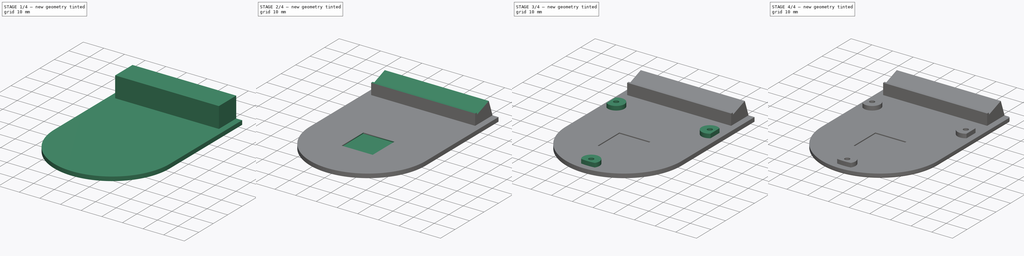
[diagram: build sequence overview — one tinted view per stage of 4, left to right]
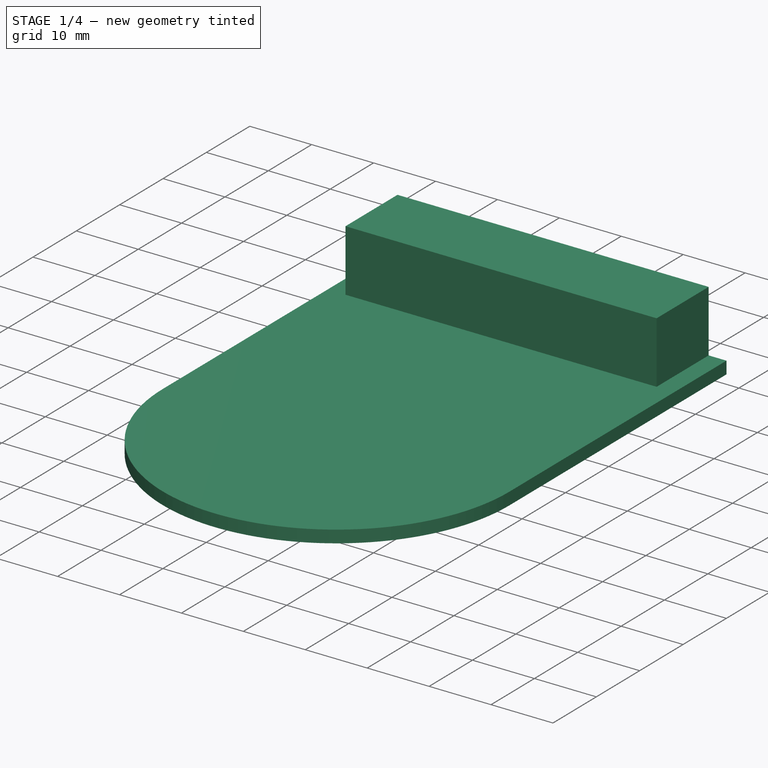
[diagram: stage 1 of 4 — iso view after this stage's code; geometry added in this stage tinted green]
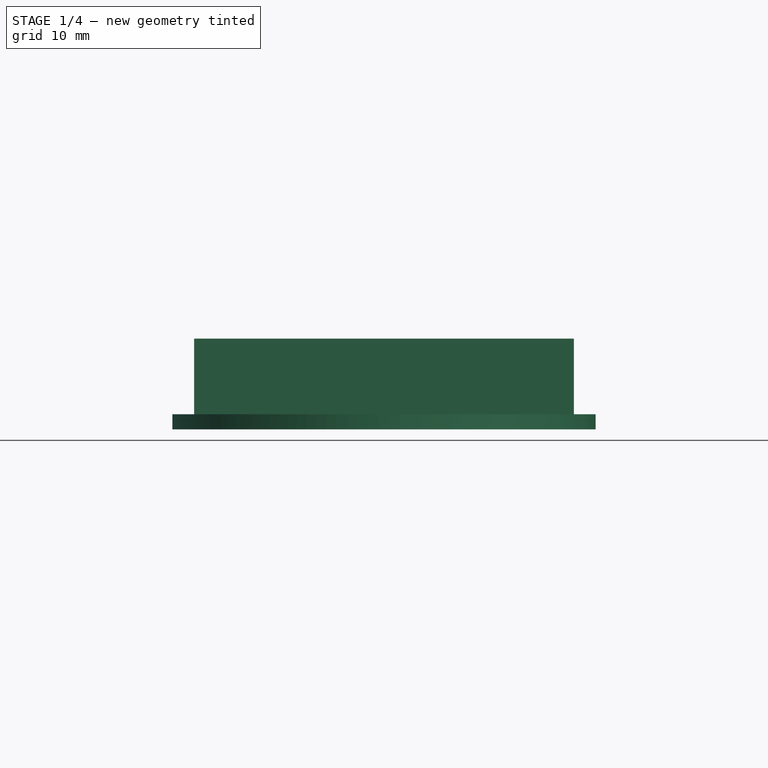
[diagram: stage 1 of 4 — front view after this stage's code; geometry added in this stage tinted green]
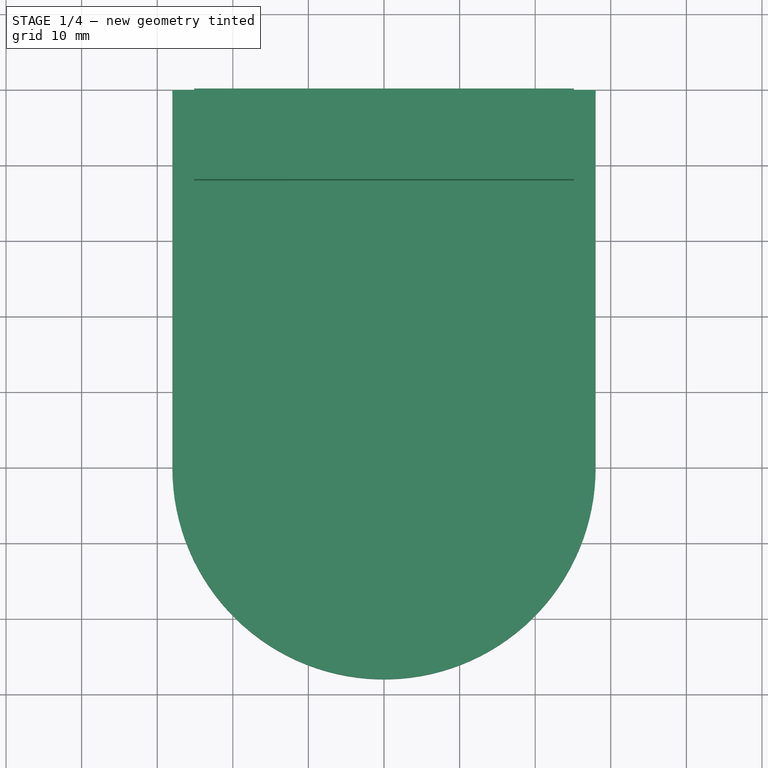
[diagram: stage 1 of 4 — top view after this stage's code; geometry added in this stage tinted green]
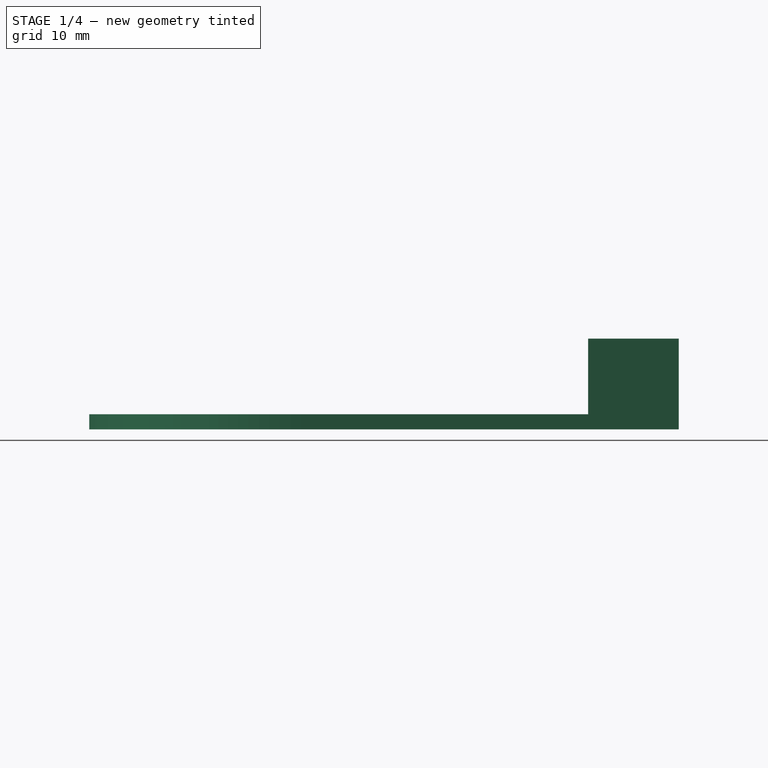
[diagram: stage 1 of 4 — right view after this stage's code; geometry added in this stage tinted green]
FCSTD DOCUMENT  (FreeCAD 0.16R6704 (Git))
Label: case-lower
License: All rights reserved
LicenseURL: http://en.wikipedia.org/wiki/All_rights_reserved
objects: Sketcher::SketchObject×7, PartDesign::Pocket×4, PartDesign::Pad×3, PartDesign::Fillet×2
note: 23 computed .brp shape members not serialized (recipe doc carries the construction recipe); baked Part::Feature solids carry a one-line shape summary decoded from their .brp

FEATURE [Sketcher::SketchObject] Sketch
  sketch-geometry (4):
    g0: ArcOfCircle CenterX=0 CenterY=0 CenterZ=0 NormalX=0 NormalY=0 NormalZ=1 Radius=28 StartAngle=3.14159 EndAngle=6.28319
    g1: LineSegment StartX=-28 StartY=0 StartZ=0 EndX=-28 EndY=50 EndZ=0
    g2: LineSegment StartX=-28 StartY=50 StartZ=0 EndX=28 EndY=50 EndZ=0
    g3: LineSegment StartX=28 StartY=50 StartZ=0 EndX=28 EndY=0 EndZ=0
  constraints (11):
    c: Coincident(g0,g-1)
    c: PointOnObject(g0,g-1)
    c: PointOnObject(g0,g-1)
    c: Tangent(g0,g1) = 1.5708
    c: Coincident(g1,g2)
    c: Horizontal(g2)
    c: Coincident(g2,g3)
    c: Coincident(g3,g0)
    c: Vertical(g3)
    c: DistanceX(g2,g2) = 56
    c: DistanceY(g1) = 50
FEATURE [PartDesign::Pad] Pad
  Length = 2
  Length2 = 100
  Sketch = -> Sketch
  Type = 0
FEATURE [Sketcher::SketchObject] Sketch001
  ExternalGeometry = -> [Pad]
  Placement = pos=(0,0,2) rot=(0,0,1;0rad)
  Support = -> Pad [Face6]
  sketch-geometry (4):
    g0: LineSegment StartX=-25.125 StartY=50 StartZ=0 EndX=25.125 EndY=50 EndZ=0
    g1: LineSegment StartX=25.125 StartY=50 StartZ=0 EndX=25.125 EndY=38 EndZ=0
    g2: LineSegment StartX=25.125 StartY=38 StartZ=0 EndX=-25.125 EndY=38 EndZ=0
    g3: LineSegment StartX=-25.125 StartY=38 StartZ=0 EndX=-25.125 EndY=50 EndZ=0
  constraints (12):
    c: Coincident(g0,g1)
    c: Coincident(g1,g2)
    c: Coincident(g2,g3)
    c: Coincident(g3,g0)
    c: Horizontal(g0)
    c: Horizontal(g2)
    c: Vertical(g1)
    c: Vertical(g3)
    c: PointOnObject(g0,g-3)
    c: DistanceY(g3,g3) = 12
    c: Symmetric(g1,g2,g-2)
    c: DistanceX(g2,g2) = 50.25
FEATURE [PartDesign::Pad] Pad001
  Length = 10
  Length2 = 100
  Sketch = -> Sketch001
  Type = 0
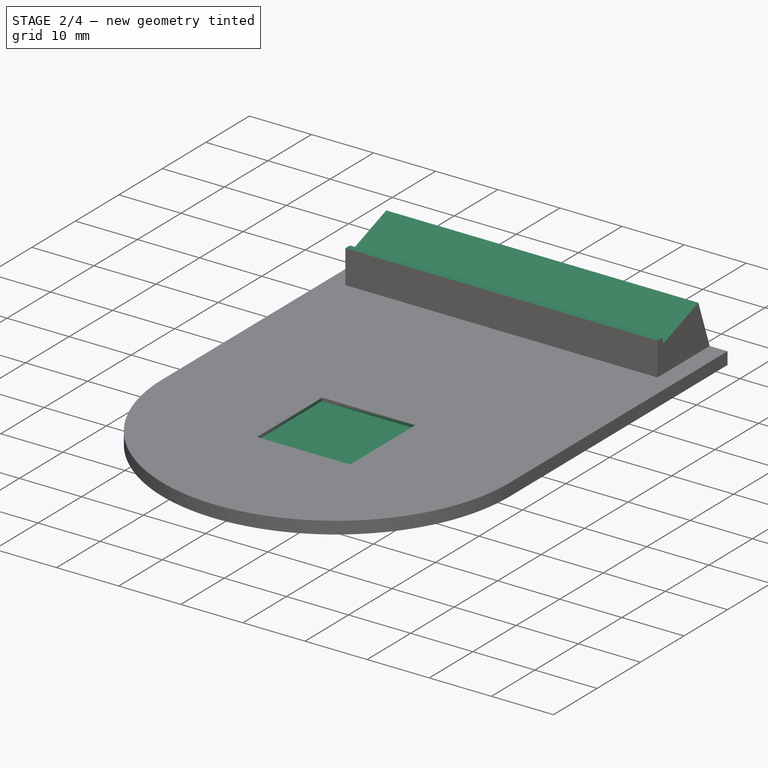
[diagram: stage 2 of 4 — iso view after this stage's code; geometry added in this stage tinted green]
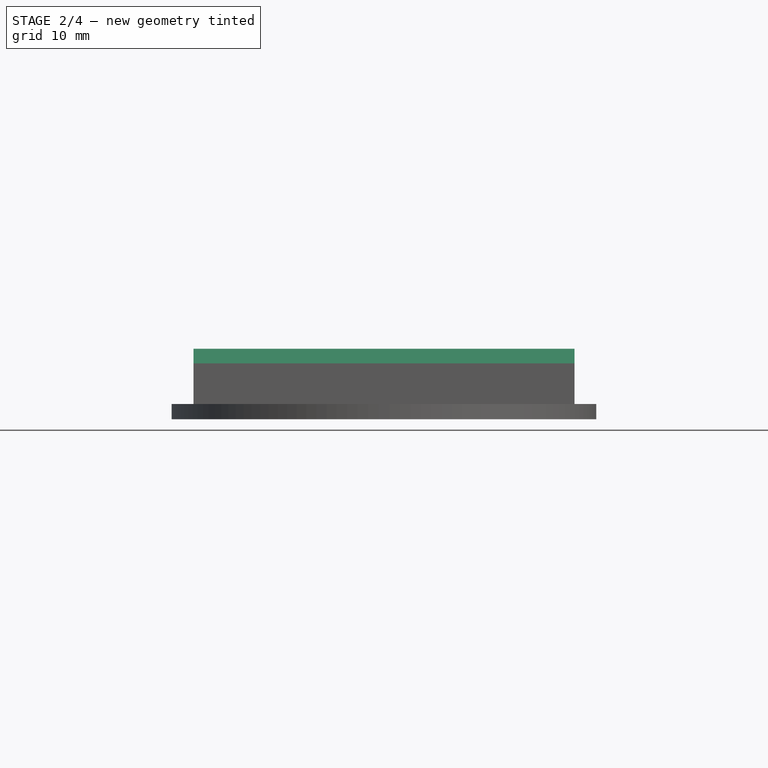
[diagram: stage 2 of 4 — front view after this stage's code; geometry added in this stage tinted green]
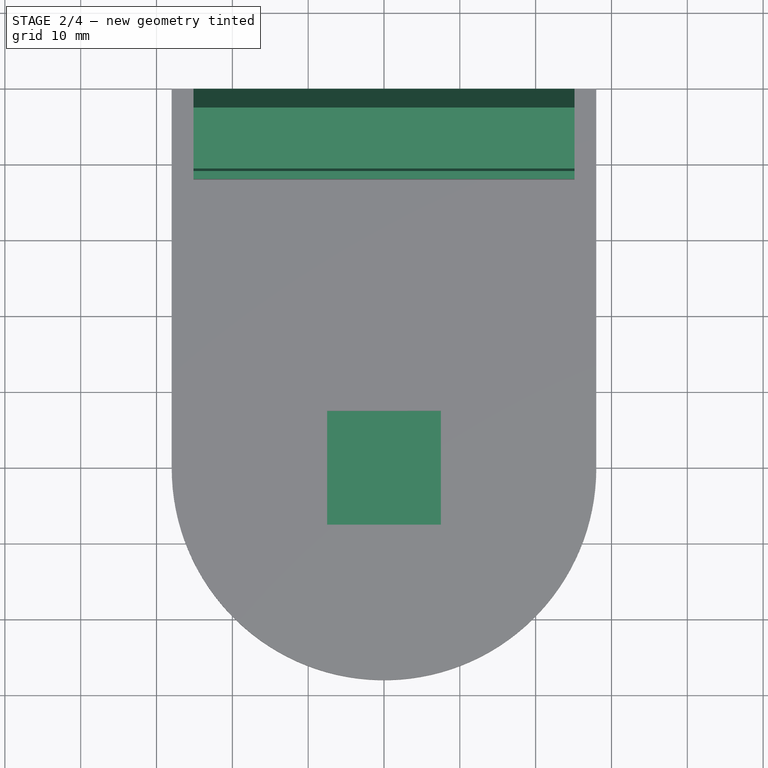
[diagram: stage 2 of 4 — top view after this stage's code; geometry added in this stage tinted green]
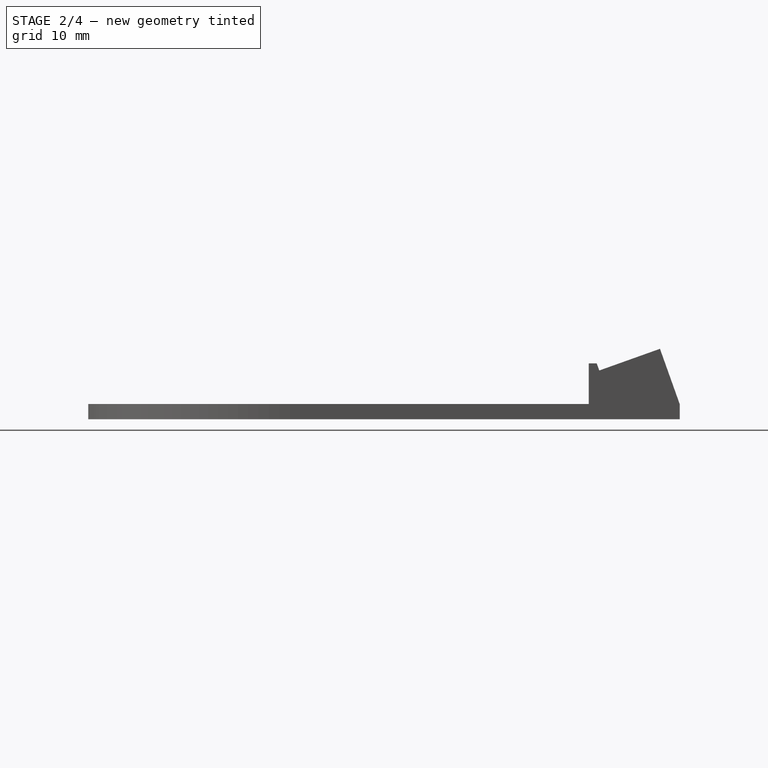
[diagram: stage 2 of 4 — right view after this stage's code; geometry added in this stage tinted green]
FEATURE [Sketcher::SketchObject] Sketch002
  ExternalGeometry = -> [Pad001]
  Placement = pos=(25.125,0,0) rot=(0.57735,0.57735,0.57735;2.0944rad)
  Support = -> Pad001 [Face7]
  sketch-geometry (10):
    g0: LineSegment StartX=50 StartY=2 StartZ=0 EndX=47.3994 EndY=9.28168 EndZ=0
    g1: LineSegment StartX=47.3994 StartY=9.28168 StartZ=0 EndX=39.3946 EndY=6.42282 EndZ=0
    g2: LineSegment StartX=39.3946 StartY=6.42282 StartZ=0 EndX=39.0583 EndY=7.36456 EndZ=0
    g3: LineSegment StartX=39.0583 StartY=7.36456 StartZ=0 EndX=34 EndY=7.36456 EndZ=0
    g4: LineSegment StartX=34 StartY=7.36456 StartZ=0 EndX=34 EndY=14 EndZ=0
    g5: LineSegment StartX=34 StartY=14 StartZ=0 EndX=52 EndY=14 EndZ=0
    g6: LineSegment StartX=52 StartY=14 StartZ=0 EndX=52 EndY=2 EndZ=0
    g7: LineSegment StartX=52 StartY=2 StartZ=0 EndX=50 EndY=2 EndZ=0
    g8: LineSegment [constr] StartX=47.3994 StartY=9.28168 StartZ=0 EndX=40.9249 EndY=27.4102 EndZ=0
    g9: LineSegment [constr] StartX=40.9249 StartY=27.4102 StartZ=0 EndX=40 EndY=30 EndZ=0
  constraints (29):
    c: Coincident(g0,g-3)
    c: Coincident(g0,g1)
    c: Coincident(g1,g2)
    c: Coincident(g2,g3)
    c: Coincident(g3,g4)
    c: Vertical(g4)
    c: Coincident(g4,g5)
    c: Horizontal(g5)
    c: Coincident(g5,g6)
    c: Vertical(g6)
    c: Coincident(g6,g7)
    c: Coincident(g7,g0)
    c: Horizontal(g7)
    c: Perpendicular(g0,g1)
    c: Perpendicular(g2,g1)
    c: DistanceX(g7,g7) = 2
    c: DistanceY(g6,g6) = 12
    c: Distance(g1) = 8.5
    c: Distance(g2) = 1
    c: Coincident(g8,g0)
    c: Coincident(g9,g8)
    c: Parallel(g9,g8)
    c: Parallel(g8,g0)
    c: DistanceX(g9) = 40
    c: Distance(g9) = 2.75
    c: Distance(g8) = 19.25
    c: DistanceY(g0,g9) = 28
    c: Horizontal(g3)
    c: DistanceX(g5,g5) = 18
FEATURE [PartDesign::Pocket] Pocket
  Length = 5
  Sketch = -> Sketch002
  Type = 1
FEATURE [Sketcher::SketchObject] Sketch003
  Placement = pos=(0,0,2) rot=(0,0,1;0rad)
  Support = -> Pocket [Face5]
  sketch-geometry (4):
    g0: LineSegment StartX=-7.5 StartY=7.5 StartZ=0 EndX=7.5 EndY=7.5 EndZ=0
    g1: LineSegment StartX=7.5 StartY=7.5 StartZ=0 EndX=7.5 EndY=-7.5 EndZ=0
    g2: LineSegment StartX=7.5 StartY=-7.5 StartZ=0 EndX=-7.5 EndY=-7.5 EndZ=0
    g3: LineSegment StartX=-7.5 StartY=-7.5 StartZ=0 EndX=-7.5 EndY=7.5 EndZ=0
  constraints (12):
    c: Coincident(g0,g1)
    c: Coincident(g1,g2)
    c: Coincident(g2,g3)
    c: Coincident(g3,g0)
    c: Horizontal(g0)
    c: Horizontal(g2)
    c: Vertical(g1)
    c: Vertical(g3)
    c: Symmetric(g0,g0,g-2)
    c: Symmetric(g0,g1,g-1)
    c: Equal(g0,g1)
    c: Distance(g0) = 15
FEATURE [PartDesign::Pocket] Pocket001
  Length = 0.5
  Sketch = -> Sketch003
  Type = 0
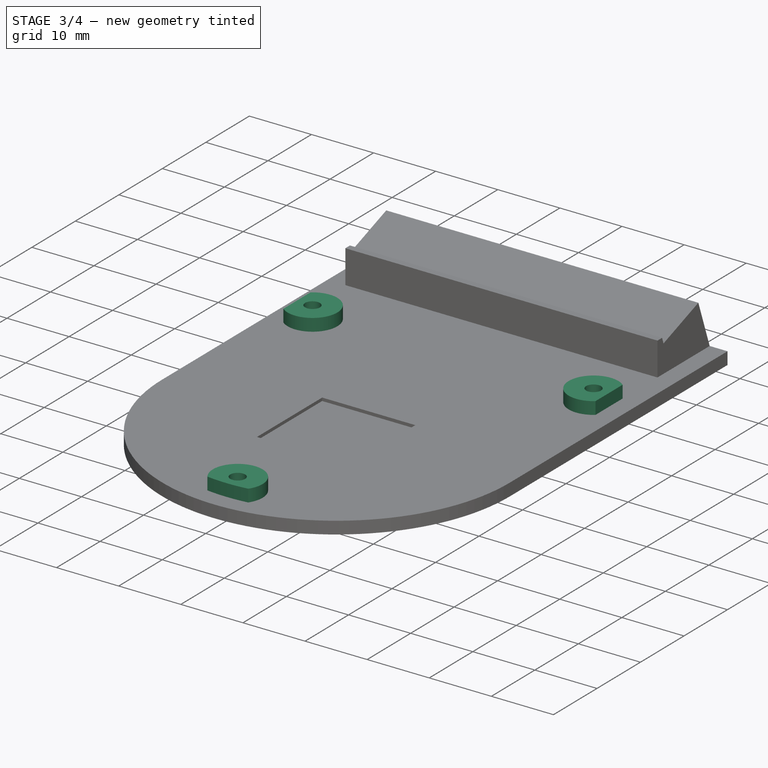
[diagram: stage 3 of 4 — iso view after this stage's code; geometry added in this stage tinted green]
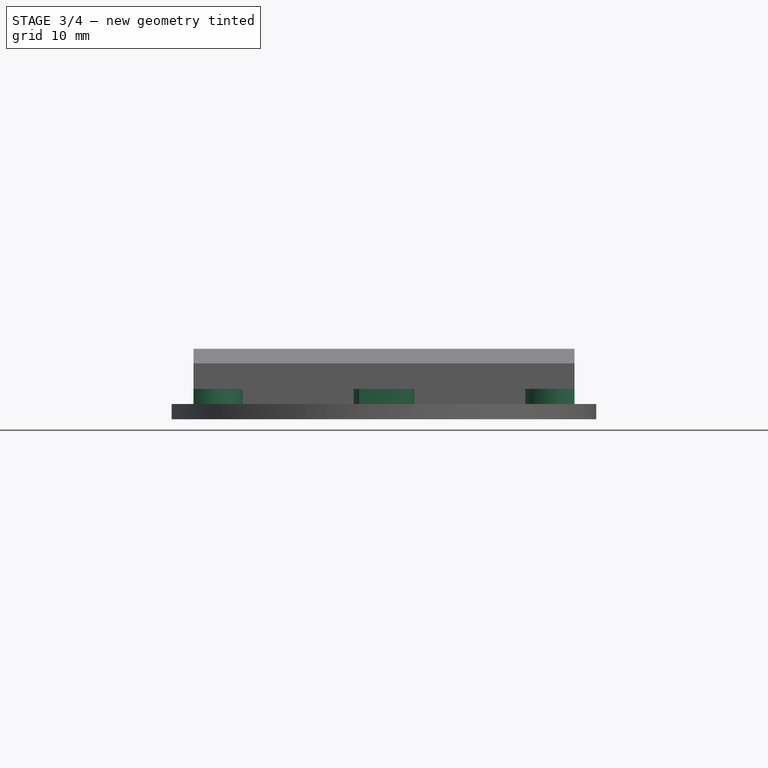
[diagram: stage 3 of 4 — front view after this stage's code; geometry added in this stage tinted green]
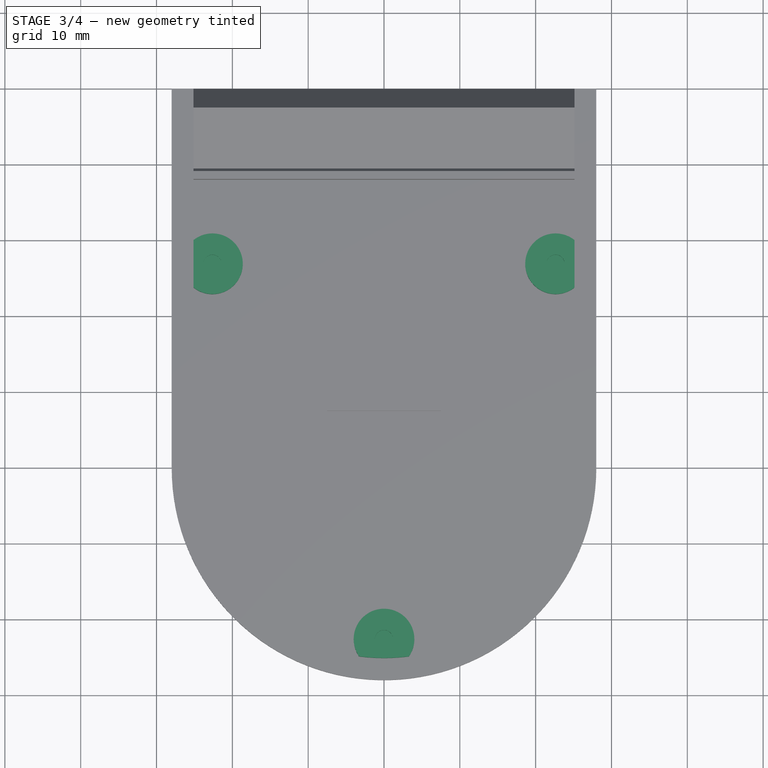
[diagram: stage 3 of 4 — top view after this stage's code; geometry added in this stage tinted green]
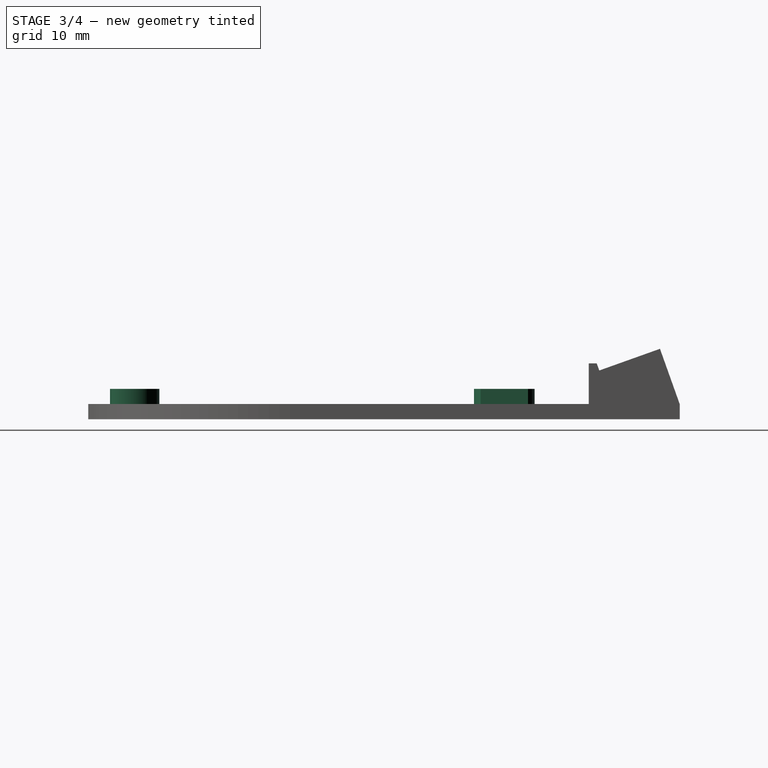
[diagram: stage 3 of 4 — right view after this stage's code; geometry added in this stage tinted green]
FEATURE [Sketcher::SketchObject] Sketch004
  Placement = pos=(0,0,2) rot=(0,0,1;0rad)
  Support = -> Pocket001 [Face5]
  sketch-geometry (6):
    g0: ArcOfCircle CenterX=-22.625 CenterY=26.8775 CenterZ=0 NormalX=0 NormalY=0 NormalZ=1 Radius=4 StartAngle=4.03726 EndAngle=8.52911
    g1: ArcOfCircle CenterX=22.625 CenterY=26.8775 CenterZ=0 NormalX=0 NormalY=0 NormalZ=1 Radius=4 StartAngle=0.895665 EndAngle=5.38752
    g2: ArcOfCircle CenterX=0 CenterY=-22.625 CenterZ=0 NormalX=0 NormalY=0 NormalZ=1 Radius=4 StartAngle=5.6753 EndAngle=10.0327
    g3: ArcOfCircle CenterX=0 CenterY=0 CenterZ=0 NormalX=0 NormalY=0 NormalZ=1 Radius=25.125 StartAngle=4.58133 EndAngle=4.84345
    g4: LineSegment StartX=-25.125 StartY=30 StartZ=0 EndX=-25.125 EndY=23.755 EndZ=0
    g5: LineSegment StartX=25.125 StartY=30 StartZ=0 EndX=25.125 EndY=23.755 EndZ=0
  constraints (20):
    c: Coincident(g3,g-1)
    c: Coincident(g3,g2)
    c: Coincident(g3,g2)
    c: Radius(g3) = 25.125
    c: PointOnObject(g2,g-2)
    c: Radius(g2) = 4
    c: Coincident(g4,g0)
    c: Coincident(g4,g0)
    c: Vertical(g4)
    c: Coincident(g5,g1)
    c: Coincident(g5,g1)
    c: Vertical(g5)
    c: Symmetric(g1,g0,g-2)
    c: Radius(g1) = 4
    c: Radius(g0) = 4
    c: DistanceX(g1) = 25.125
    c: DistanceX(g1,g1) = 2.5
    c: DistanceY(g2) = -22.625
    c: DistanceX(g0) = -25.125
    c: DistanceY(g0) = 30
FEATURE [PartDesign::Pad] Pad002
  Length = 2
  Length2 = 100
  Sketch = -> Sketch004
  Type = 0
FEATURE [Sketcher::SketchObject] Sketch005
  ExternalGeometry = -> [Pad002]
  Placement = pos=(0,0,4) rot=(0,0,1;0rad)
  Support = -> Pad002 [Face25]
  sketch-geometry (4):
    g0: Circle CenterX=-22.625 CenterY=26.8775 CenterZ=0 NormalX=0 NormalY=0 NormalZ=1 Radius=1.2
    g1: Circle CenterX=22.625 CenterY=26.8775 CenterZ=0 NormalX=0 NormalY=0 NormalZ=1 Radius=1.2
    g2: Circle CenterX=0 CenterY=-22.625 CenterZ=0 NormalX=0 NormalY=0 NormalZ=1 Radius=1.2
    g3: LineSegment [constr] StartX=-22.625 StartY=26.8775 StartZ=0 EndX=22.625 EndY=26.8775 EndZ=0
  constraints (11):
    c: PointOnObject(g2,g-2)
    c: Radius(g2) = 1.2
    c: Equal(g2,g1)
    c: Equal(g2,g0)
    c: Coincident(g3,g0)
    c: Coincident(g3,g1)
    c: Horizontal(g3)
    c: DistanceX(g1) = 22.625
    c: DistanceY(g2) = -22.625
    c: Symmetric(g0,g1,g-2)
    c: DistanceY(g0) = 26.8775
FEATURE [PartDesign::Pocket] Pocket002
  Length = 1.3
  Sketch = -> Sketch005
  Type = 0
FEATURE [Sketcher::SketchObject] Sketch006
  Placement = pos=(0,0,0) rot=(1,0,0;3.14159rad)
  Support = -> Pocket002 [Face4]
  sketch-geometry (4):
    g0: Circle CenterX=0 CenterY=22.625 CenterZ=0 NormalX=0 NormalY=0 NormalZ=1 Radius=2.25
    g1: Circle CenterX=-22.625 CenterY=-26.8775 CenterZ=0 NormalX=0 NormalY=0 NormalZ=1 Radius=2.25
    g2: Circle CenterX=22.625 CenterY=-26.8775 CenterZ=0 NormalX=0 NormalY=0 NormalZ=1 Radius=2.25
    g3: LineSegment [constr] StartX=-22.625 StartY=-26.8775 StartZ=0 EndX=22.625 EndY=-26.8775 EndZ=0
  constraints (11):
    c: PointOnObject(g0,g-2)
    c: DistanceX(g1) = -22.625
    c: DistanceX(g2) = 22.625
    c: Coincident(g3,g1)
    c: Coincident(g3,g2)
    c: Horizontal(g3)
    c: DistanceY(g0) = 22.625
    c: Radius(g0) = 2.25
    c: Equal(g0,g2)
    c: Equal(g0,g1)
    c: DistanceY(g1) = -26.8775
FEATURE [PartDesign::Pocket] Pocket003
  Length = 2.5
  Sketch = -> Sketch006
  Type = 0
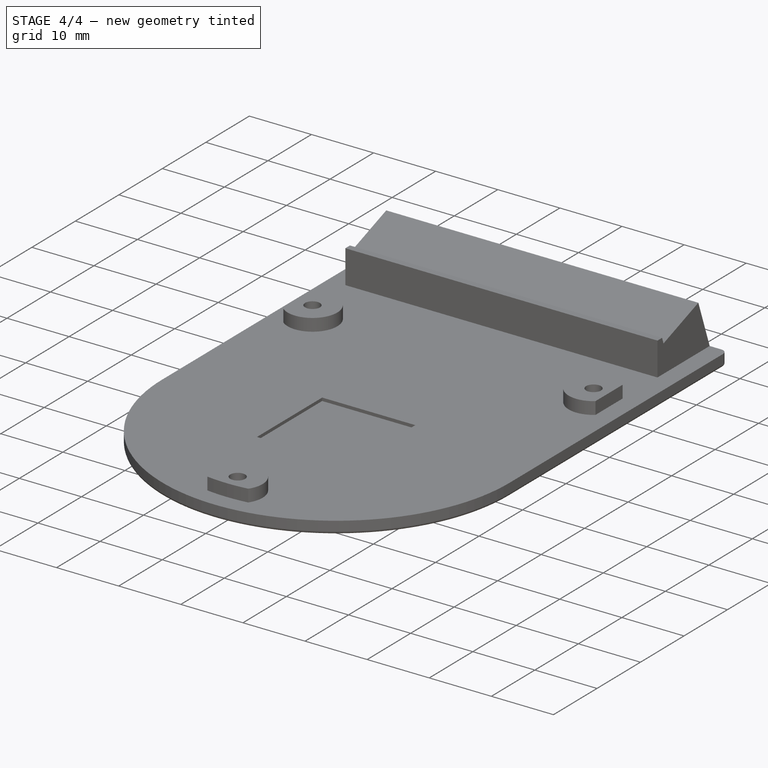
[diagram: stage 4 of 4 — iso view after this stage's code; geometry added in this stage tinted green]
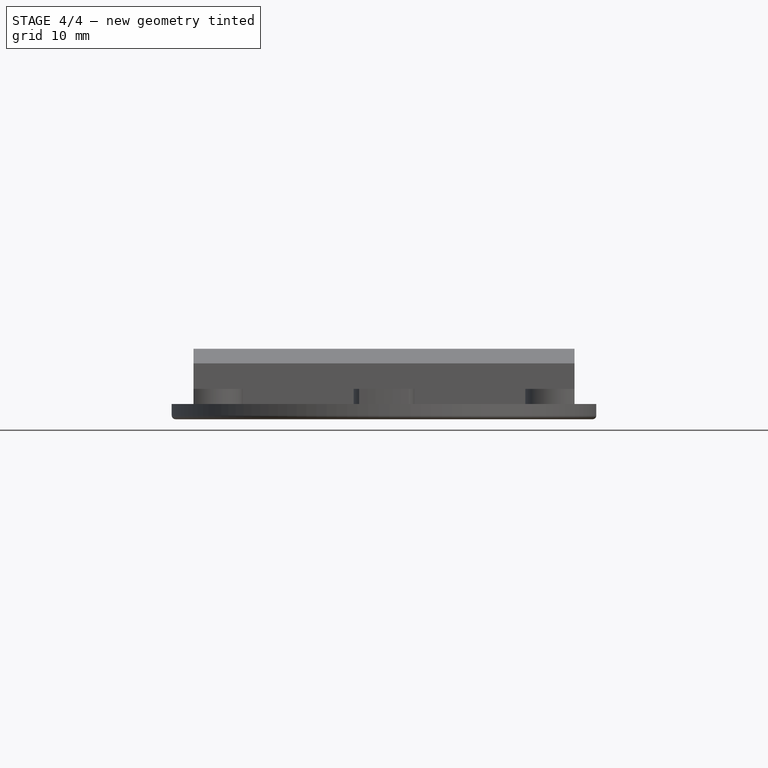
[diagram: stage 4 of 4 — front view after this stage's code; geometry added in this stage tinted green]
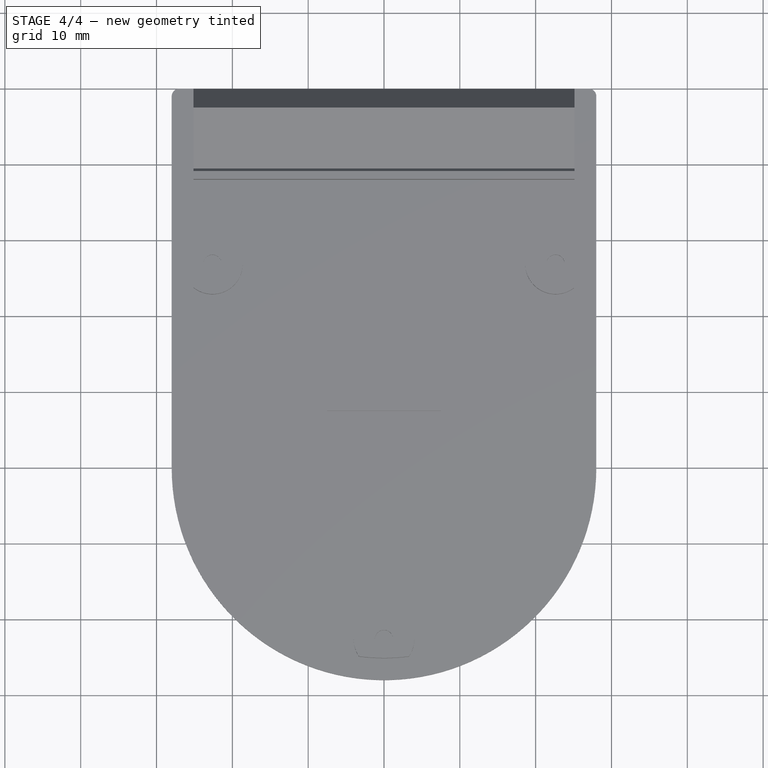
[diagram: stage 4 of 4 — top view after this stage's code; geometry added in this stage tinted green]
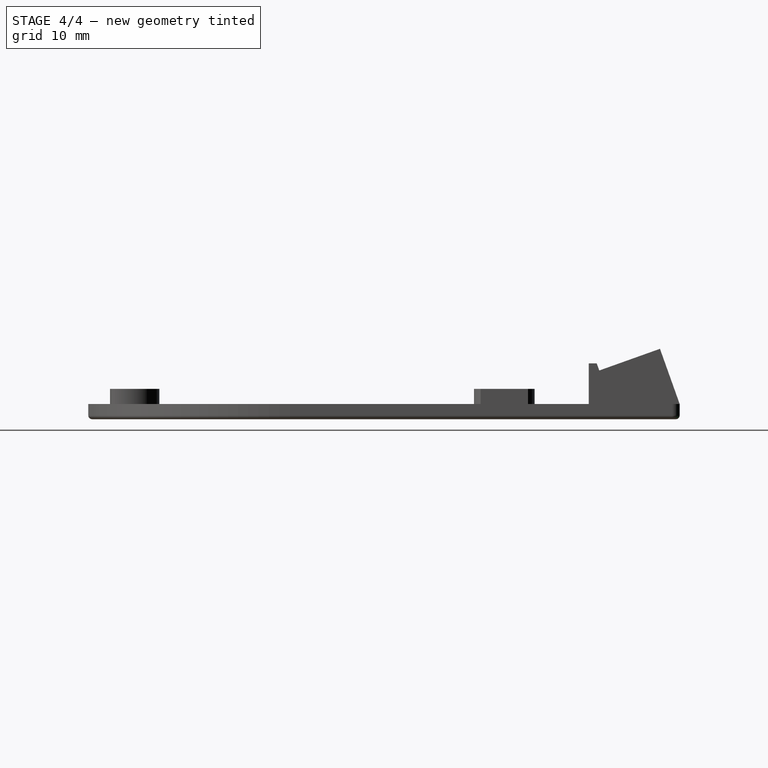
[diagram: stage 4 of 4 — right view after this stage's code; geometry added in this stage tinted green]
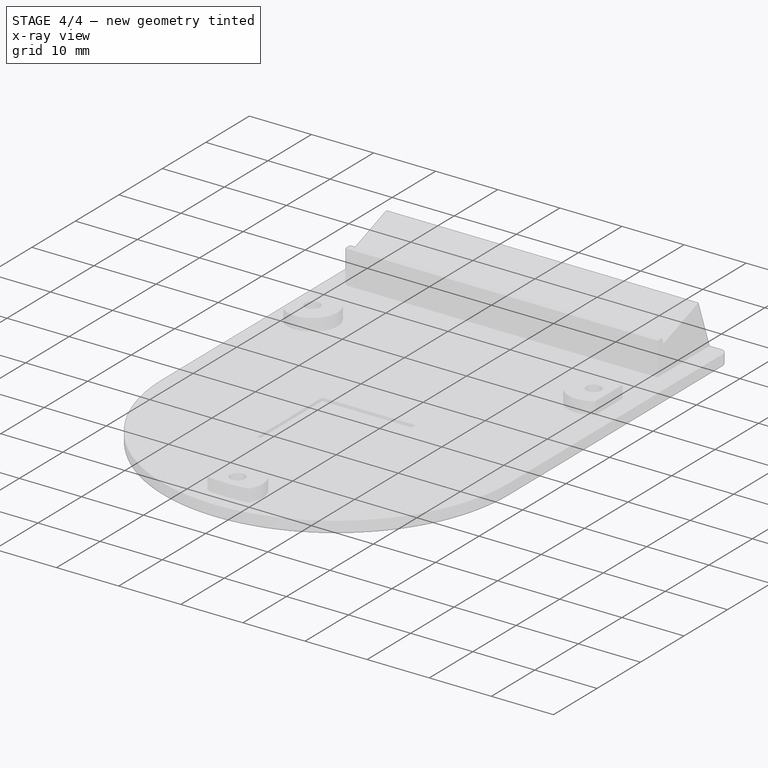
[diagram: stage 4 of 4 — x-ray composite at the iso view; earlier geometry ghosted, this stage's added geometry solid]
FEATURE [PartDesign::Fillet] Fillet
  Base = -> Pocket003 [Edge5,Edge8]
  Radius = 1
FEATURE [PartDesign::Fillet] Fillet001
  Base = -> Fillet [Edge7,Edge9,Edge8,Edge6,Edge1,Edge5]
  Radius = 0.5
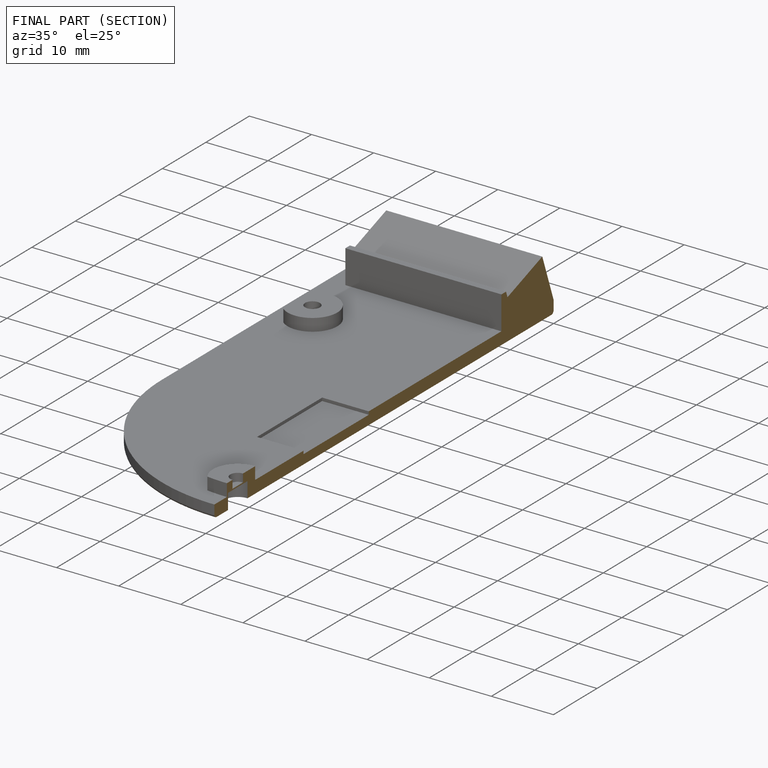
[diagram: finished part — half-section view (interior)]
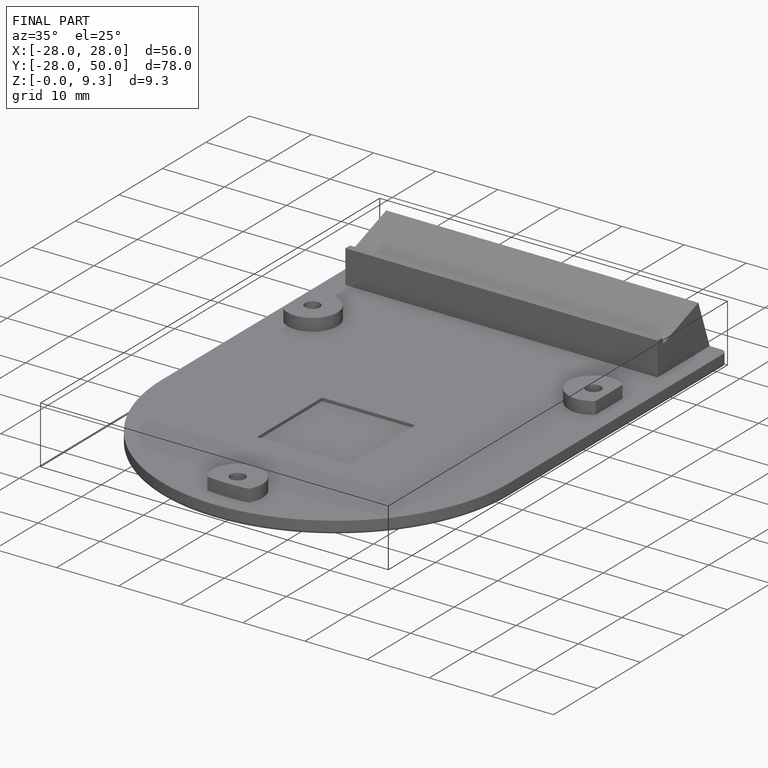
[diagram: finished part — iso view with bounding-box wireframe]
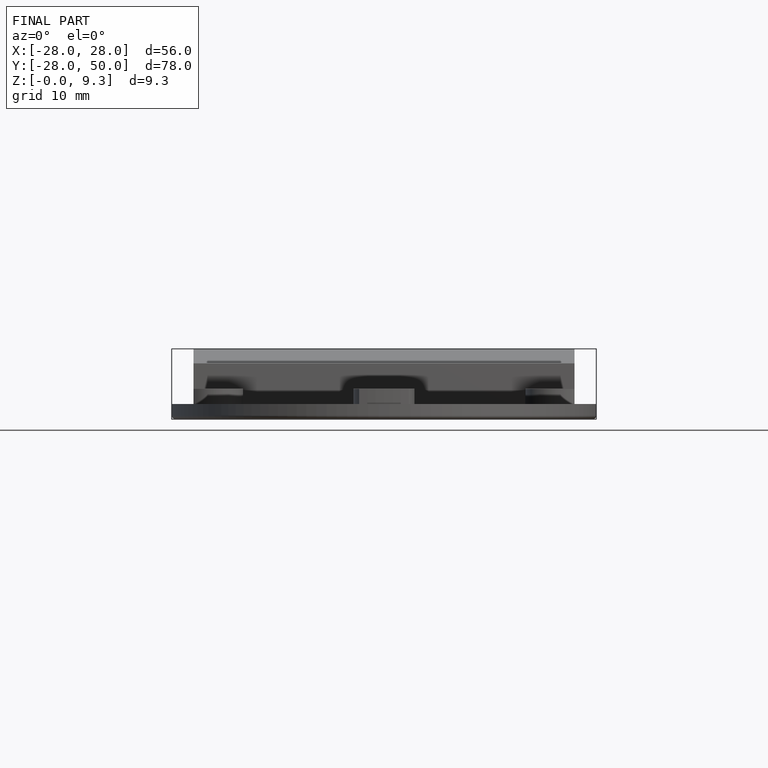
[diagram: finished part — front view with bounding-box wireframe]
